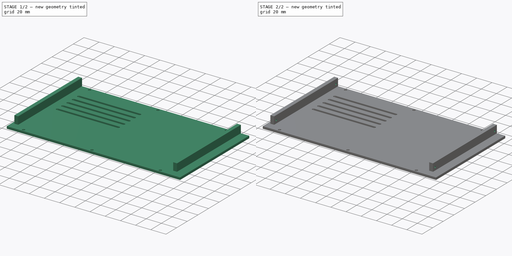
[diagram: build sequence overview — one tinted view per stage of 2, left to right]
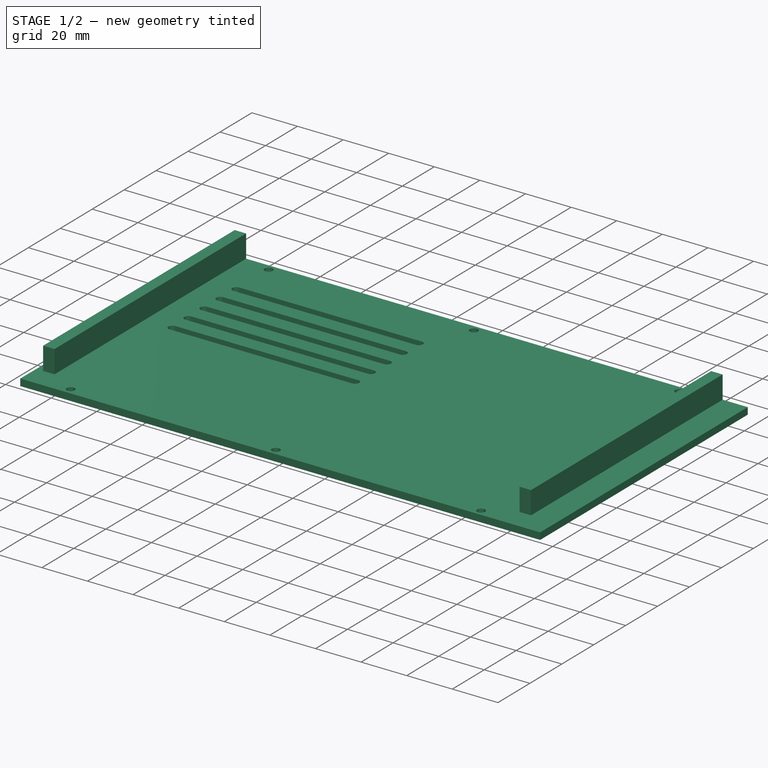
[diagram: stage 1 of 2 — iso view after this stage's code; geometry added in this stage tinted green]
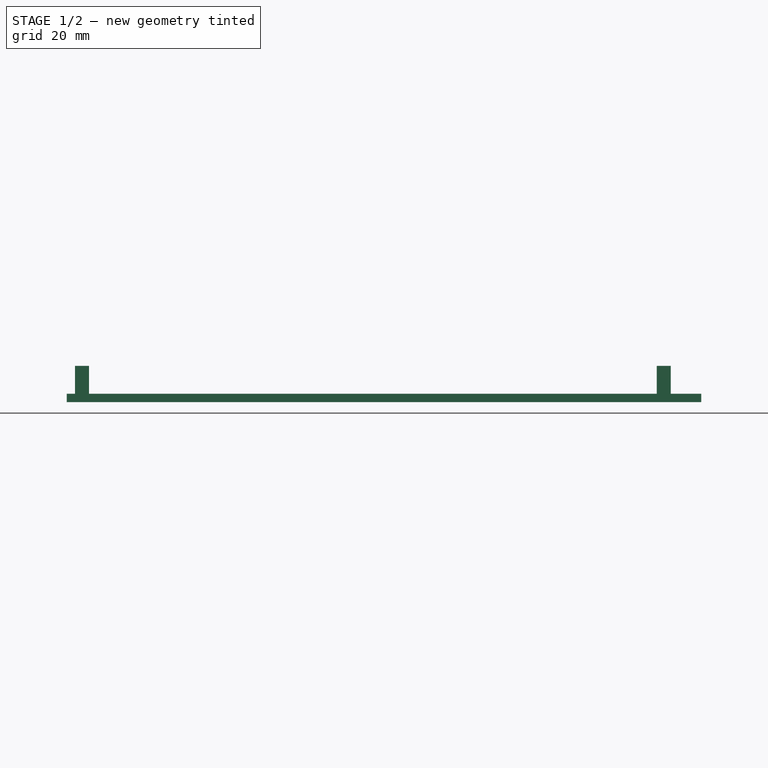
[diagram: stage 1 of 2 — front view after this stage's code; geometry added in this stage tinted green]
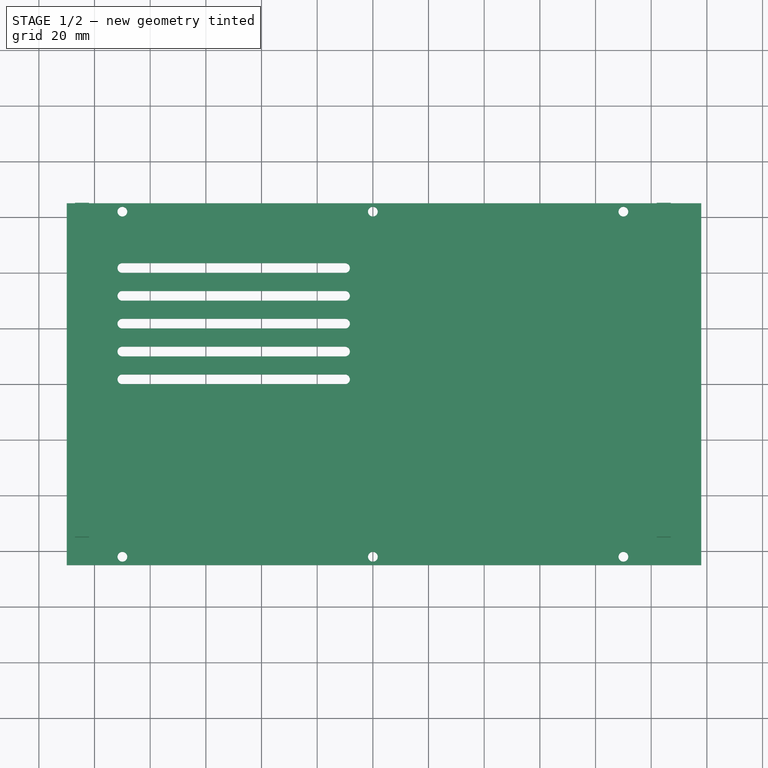
[diagram: stage 1 of 2 — top view after this stage's code; geometry added in this stage tinted green]
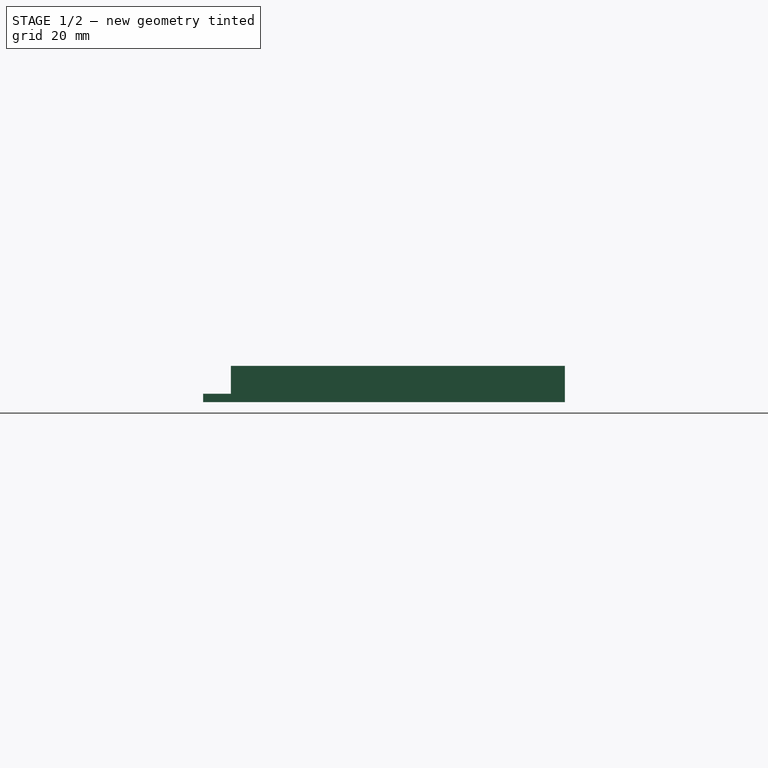
[diagram: stage 1 of 2 — right view after this stage's code; geometry added in this stage tinted green]
FCSTD DOCUMENT  (FreeCAD 0.19R24267 +99 (Git))
Label: T41 Side Right Panel V006
License: All rights reserved
LicenseURL: http://en.wikipedia.org/wiki/All_rights_reserved
objects: Sketcher::SketchObject×3, PartDesign::Pad×2, PartDesign::Pocket×1, PartDesign::Body×1
note: 10 computed .brp shape members not serialized (recipe doc carries the construction recipe); baked Part::Feature solids carry a one-line shape summary decoded from their .brp

FEATURE [Sketcher::SketchObject] Sketch
  FullyConstrained = true
  MapMode = 5
  Support = -> [XY_Plane]
  sketch-geometry (30):
    g0: LineSegment StartX=-110 StartY=65 StartZ=0 EndX=118 EndY=65 EndZ=0
    g1: LineSegment StartX=118 StartY=65 StartZ=0 EndX=118 EndY=-65 EndZ=0
    g2: LineSegment StartX=118 StartY=-65 StartZ=0 EndX=-110 EndY=-65 EndZ=0
    g3: LineSegment StartX=-110 StartY=-65 StartZ=0 EndX=-110 EndY=65 EndZ=0
    g4: Circle CenterX=-90 CenterY=62 CenterZ=0 NormalX=0 NormalY=0 NormalZ=1 AngleXU=0 Radius=1.75
    g5: Circle CenterX=0 CenterY=62 CenterZ=0 NormalX=0 NormalY=0 NormalZ=1 AngleXU=0 Radius=1.75
    g6: Circle CenterX=90 CenterY=62 CenterZ=0 NormalX=0 NormalY=0 NormalZ=1 AngleXU=0 Radius=1.75
    g7: Circle CenterX=-90 CenterY=-62 CenterZ=0 NormalX=0 NormalY=0 NormalZ=1 AngleXU=0 Radius=1.75
    g8: Circle CenterX=0 CenterY=-62 CenterZ=0 NormalX=0 NormalY=0 NormalZ=1 AngleXU=0 Radius=1.75
    g9: Circle CenterX=90 CenterY=-62 CenterZ=0 NormalX=0 NormalY=0 NormalZ=1 AngleXU=0 Radius=1.75
    g10: ArcOfCircle CenterX=-90 CenterY=41.75 CenterZ=0 NormalX=0 NormalY=0 NormalZ=1 AngleXU=0 Radius=1.75 StartAngle=1.5708 EndAngle=4.71239
    g11: ArcOfCircle CenterX=-10 CenterY=41.75 CenterZ=0 NormalX=0 NormalY=0 NormalZ=1 AngleXU=0 Radius=1.75 StartAngle=4.71239 EndAngle=7.85398
    g12: LineSegment StartX=-90 StartY=40 StartZ=0 EndX=-10 EndY=40 EndZ=0
    g13: LineSegment StartX=-90 StartY=43.5 StartZ=0 EndX=-10 EndY=43.5 EndZ=0
    g14: ArcOfCircle CenterX=-90 CenterY=31.75 CenterZ=0 NormalX=0 NormalY=0 NormalZ=1 AngleXU=0 Radius=1.75 StartAngle=1.5708 EndAngle=4.71239
    g15: ArcOfCircle CenterX=-10 CenterY=31.75 CenterZ=0 NormalX=0 NormalY=0 NormalZ=1 AngleXU=0 Radius=1.75 StartAngle=4.71239 EndAngle=7.85398
    g16: LineSegment StartX=-90 StartY=30 StartZ=0 EndX=-10 EndY=30 EndZ=0
    g17: LineSegment StartX=-90 StartY=33.5 StartZ=0 EndX=-10 EndY=33.5 EndZ=0
    g18: ArcOfCircle CenterX=-90 CenterY=21.75 CenterZ=0 NormalX=0 NormalY=0 NormalZ=1 AngleXU=0 Radius=1.75 StartAngle=1.5708 EndAngle=4.71239
    g19: ArcOfCircle CenterX=-10 CenterY=21.75 CenterZ=0 NormalX=0 NormalY=0 NormalZ=1 AngleXU=0 Radius=1.75 StartAngle=4.71239 EndAngle=7.85398
    g20: LineSegment StartX=-90 StartY=20 StartZ=0 EndX=-10 EndY=20 EndZ=0
    g21: LineSegment StartX=-90 StartY=23.5 StartZ=0 EndX=-10 EndY=23.5 EndZ=0
    g22: ArcOfCircle CenterX=-90 CenterY=11.75 CenterZ=0 NormalX=0 NormalY=0 NormalZ=1 AngleXU=0 Radius=1.75 StartAngle=1.5708 EndAngle=4.71239
    g23: ArcOfCircle CenterX=-10 CenterY=11.75 CenterZ=0 NormalX=0 NormalY=0 NormalZ=1 AngleXU=0 Radius=1.75 StartAngle=4.71239 EndAngle=7.85398
    g24: LineSegment StartX=-90 StartY=10 StartZ=0 EndX=-10 EndY=10 EndZ=0
    g25: LineSegment StartX=-90 StartY=13.5 StartZ=0 EndX=-10 EndY=13.5 EndZ=0
    g26: ArcOfCircle CenterX=-90 CenterY=1.75 CenterZ=0 NormalX=0 NormalY=0 NormalZ=1 AngleXU=0 Radius=1.75 StartAngle=1.5708 EndAngle=4.71239
    g27: ArcOfCircle CenterX=-10 CenterY=1.75 CenterZ=0 NormalX=0 NormalY=0 NormalZ=1 AngleXU=0 Radius=1.75 StartAngle=4.71239 EndAngle=7.85398
    g28: LineSegment StartX=-90 StartY=0 StartZ=0 EndX=-10 EndY=0 EndZ=0
    g29: LineSegment StartX=-90 StartY=3.5 StartZ=0 EndX=-10 EndY=3.5 EndZ=0
  constraints (80):
    c: Coincident(g0,g1)
    c: Coincident(g1,g2)
    c: Coincident(g2,g3)
    c: Coincident(g3,g0)
    c: Horizontal(g0)
    c: Vertical(g1)
    c: DistanceX(g0,g0) = 228
    c: DistanceY(g1,g1) = 130
    c: Symmetric(g2,g1,g-2)
    c: Symmetric(g2,g0,g-1)
    c: PointOnObject(g5,g-2)
    c: Equal(g4,g5)
    c: Equal(g4,g6)
    c: Diameter(g4) = 3.5
    c: Horizontal(g4,g5)
    c: Horizontal(g5,g6)
    c: DistanceY(g-1,g5) = 62
    c: Equal(g7,g8)
    c: Equal(g7,g9)
    c: Diameter(g7) = 3.5
    c: Horizontal(g7,g8)
    c: Horizontal(g8,g9)
    c: DistanceY(g8,g-1) = 62
    c: DistanceX(g2,g7) = 20
    c: DistanceX(g9,g1) = 28
    c: PointOnObject(g8,g-2)
    c: DistanceX(g6,g0) = 28
    c: DistanceX(g0,g4) = 20
    c: Tangent(g10,g13) = 1.5708
    c: Tangent(g10,g12) = -1.5708
    c: Tangent(g12,g11) = -1.5708
    c: Tangent(g13,g11) = 1.5708
    c: Horizontal(g12)
    c: Equal(g10,g11)
    c: DistanceX(g13,g13) = 80
    c: DistanceY(g11,g11) = 3.5
    c: Tangent(g14,g17) = 1.5708
    c: Tangent(g14,g16) = -1.5708
    c: Tangent(g16,g15) = -1.5708
    c: Tangent(g17,g15) = 1.5708
    c: Horizontal(g16)
    c: Equal(g14,g15)
    c: DistanceX(g17,g17) = 80
    c: DistanceY(g15,g15) = 3.5
    c: Tangent(g18,g21) = 1.5708
    c: Tangent(g18,g20) = -1.5708
    c: Tangent(g20,g19) = -1.5708
    c: Tangent(g21,g19) = 1.5708
    c: Horizontal(g20)
    c: Equal(g18,g19)
    c: DistanceX(g21,g21) = 80
    c: DistanceY(g19,g19) = 3.5
    c: Tangent(g22,g25) = 1.5708
    c: Tangent(g22,g24) = -1.5708
    c: Tangent(g24,g23) = -1.5708
    c: Tangent(g25,g23) = 1.5708
    c: Horizontal(g24)
    c: Equal(g22,g23)
    c: DistanceX(g25,g25) = 80
    c: DistanceY(g23,g23) = 3.5
    c: Tangent(g26,g29) = 1.5708
    c: Tangent(g26,g28) = -1.5708
    c: Tangent(g28,g27) = -1.5708
    c: Tangent(g29,g27) = 1.5708
    c: Horizontal(g28)
    c: Equal(g26,g27)
    c: DistanceX(g29,g29) = 80
    c: DistanceY(g27,g27) = 3.5
    c: DistanceY(g15,g11) = 10
    c: DistanceY(g19,g15) = 10
    c: DistanceY(g23,g19) = 10
    c: DistanceY(g27,g23) = 10
    c: Vertical(g11,g15)
    c: Vertical(g15,g19)
    c: Vertical(g19,g23)
    c: Vertical(g23,g27)
    c: DistanceX(g-1,g26) = -90
    c: Horizontal(g26,g-1)
    c: DistanceX(g2) = -110
    c: DistanceY(g2,g0) = 130
FEATURE [PartDesign::Pad] Pad
  Direction = (1,1,1)
  Length = 3
  Length2 = 100
  Profile = -> Sketch
  Type = 0
FEATURE [Sketcher::SketchObject] Sketch001
  FullyConstrained = true
  MapMode = 5
  Support = -> [XY_Plane]
  sketch-geometry (8):
    g0: LineSegment StartX=102 StartY=65 StartZ=0 EndX=107 EndY=65 EndZ=0
    g1: LineSegment StartX=107 StartY=65 StartZ=0 EndX=107 EndY=-55 EndZ=0
    g2: LineSegment StartX=107 StartY=-55 StartZ=0 EndX=102 EndY=-55 EndZ=0
    g3: LineSegment StartX=102 StartY=-55 StartZ=0 EndX=102 EndY=65 EndZ=0
    g4: LineSegment StartX=-107 StartY=65 StartZ=0 EndX=-102 EndY=65 EndZ=0
    g5: LineSegment StartX=-102 StartY=65 StartZ=0 EndX=-102 EndY=-55 EndZ=0
    g6: LineSegment StartX=-102 StartY=-55 StartZ=0 EndX=-107 EndY=-55 EndZ=0
    g7: LineSegment StartX=-107 StartY=-55 StartZ=0 EndX=-107 EndY=65 EndZ=0
  constraints (24):
    c: Coincident(g0,g1)
    c: Coincident(g1,g2)
    c: Coincident(g2,g3)
    c: Coincident(g3,g0)
    c: Horizontal(g0)
    c: Horizontal(g2)
    c: Vertical(g1)
    c: Vertical(g3)
    c: Coincident(g4,g5)
    c: Coincident(g5,g6)
    c: Coincident(g6,g7)
    c: Coincident(g7,g4)
    c: Horizontal(g4)
    c: Horizontal(g6)
    c: Vertical(g5)
    c: Vertical(g7)
    c: DistanceX(g0,g0) = 5
    c: DistanceX(g4,g4) = 5
    c: DistanceY(g1,g1) = 120
    c: DistanceY(g5,g5) = 120
    c: DistanceY(g-1,g0) = 65
    c: DistanceY(g-1,g4) = 65
    c: DistanceX(g-1,g0) = 107
    c: DistanceX(g4,g-1) = 107
FEATURE [PartDesign::Pad] Pad001  label="Flange"
  BaseFeature = -> Pad
  Direction = (1,1,1)
  Length = 13
  Length2 = 100
  Profile = -> Sketch001
  Type = 0
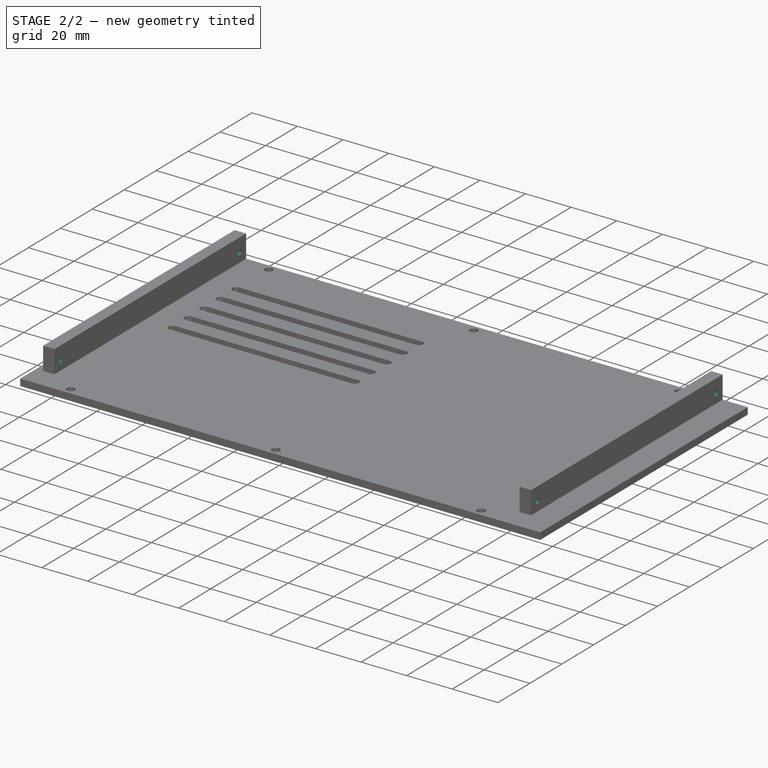
[diagram: stage 2 of 2 — iso view after this stage's code; geometry added in this stage tinted green]
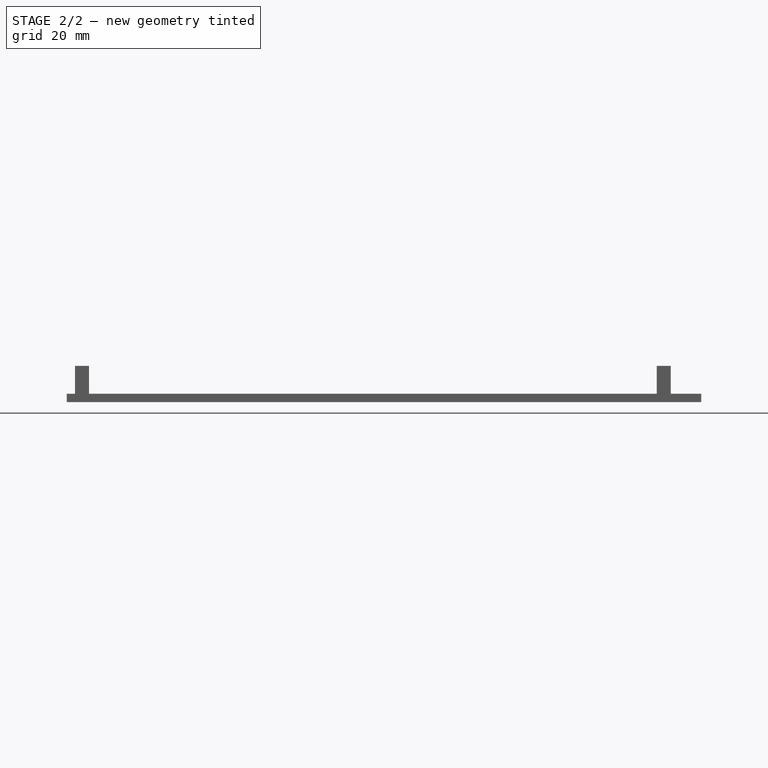
[diagram: stage 2 of 2 — front view after this stage's code; geometry added in this stage tinted green]
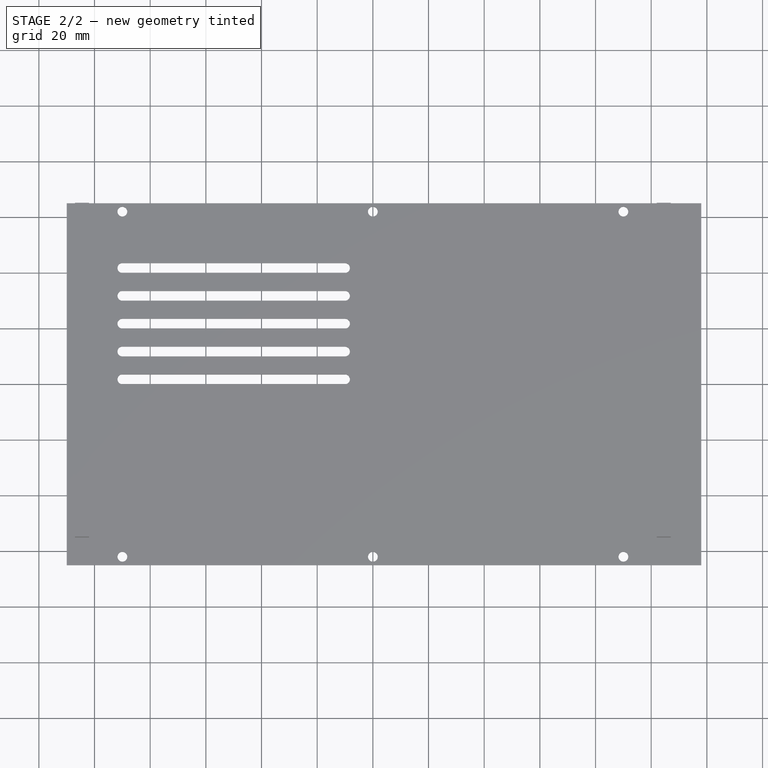
[diagram: stage 2 of 2 — top view after this stage's code; geometry added in this stage tinted green]
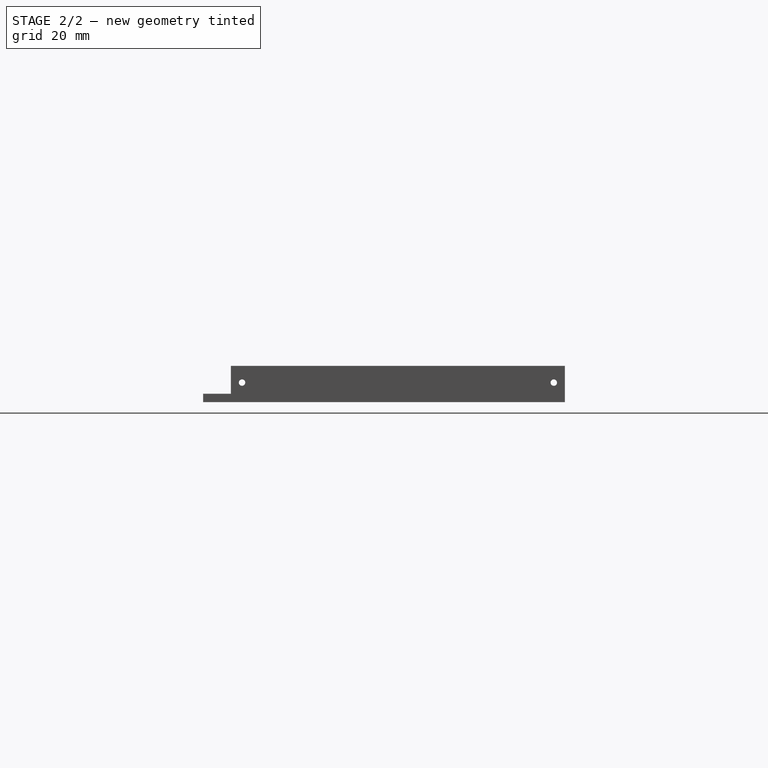
[diagram: stage 2 of 2 — right view after this stage's code; geometry added in this stage tinted green]
FEATURE [Sketcher::SketchObject] Sketch002
  FullyConstrained = true
  MapMode = 5
  Placement = pos=(0,0,0) rot=(0.57735,0.57735,0.57735;2.0944rad)
  Support = -> [YZ_Plane]
  sketch-geometry (2):
    g0: Circle CenterX=-51 CenterY=7 CenterZ=0 NormalX=0 NormalY=0 NormalZ=1 AngleXU=0 Radius=1.15
    g1: Circle CenterX=61 CenterY=7 CenterZ=0 NormalX=0 NormalY=0 NormalZ=1 AngleXU=0 Radius=1.15
  constraints (6):
    c: Equal(g0,g1)
    c: Diameter(g0) = 2.3
    c: DistanceX(g0,g-1) = 51
    c: DistanceX(g-1,g1) = 61
    c: Horizontal(g0,g1)
    c: DistanceY(g-1,g0) = 7
FEATURE [PartDesign::Pocket] Pocket
  BaseFeature = -> Pad001
  Length = 225
  Length2 = 100
  Midplane = true
  Profile = -> Sketch002
  Reversed = true
  Type = 0
FEATURE [PartDesign::Body] Body
  Group = -> [Sketch,Pad,Sketch001,Pad001,Sketch002,Pocket]
  Origin = -> Origin
  Tip = -> Pocket
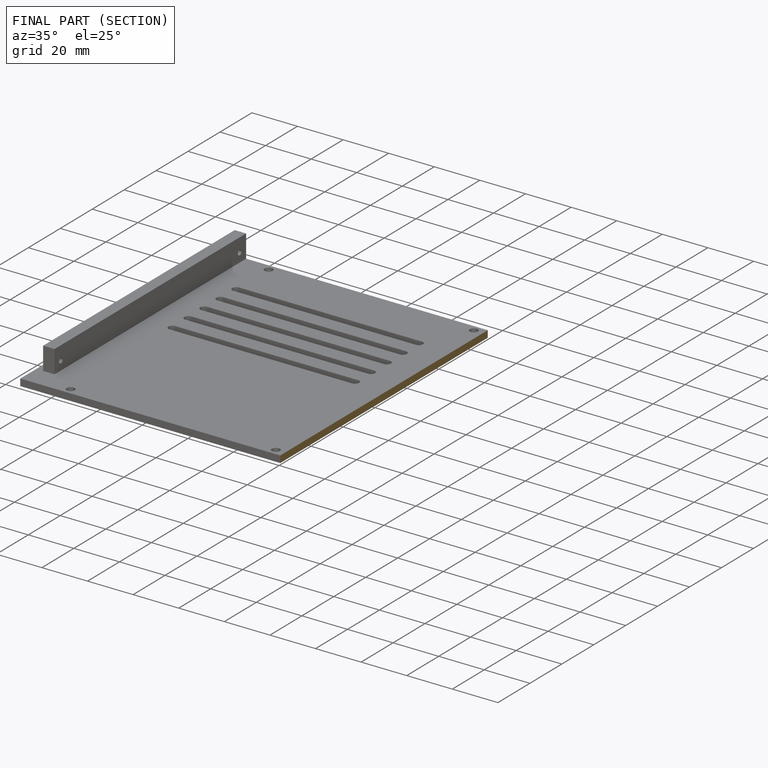
[diagram: finished part — half-section view (interior)]
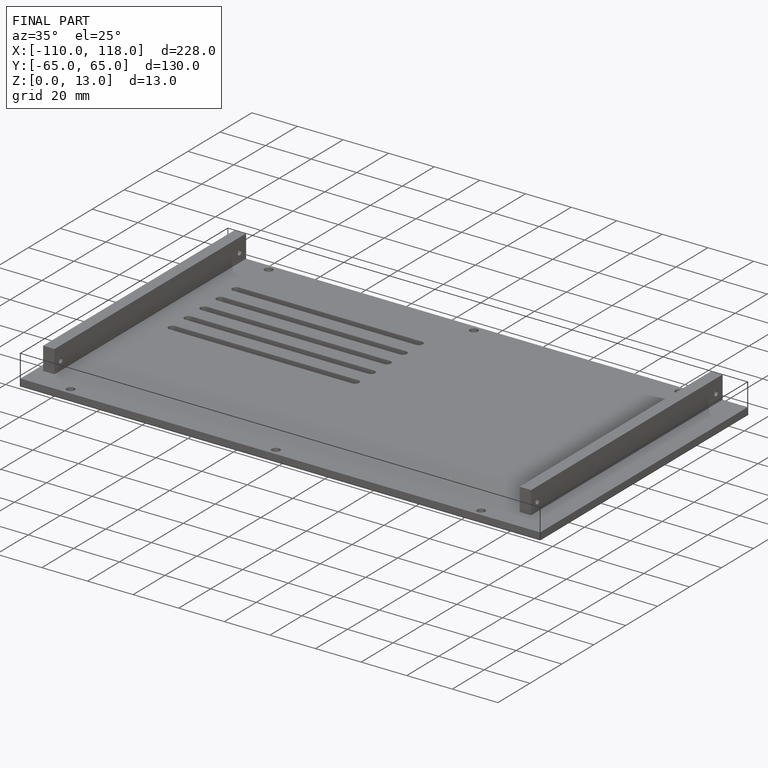
[diagram: finished part — iso view with bounding-box wireframe]
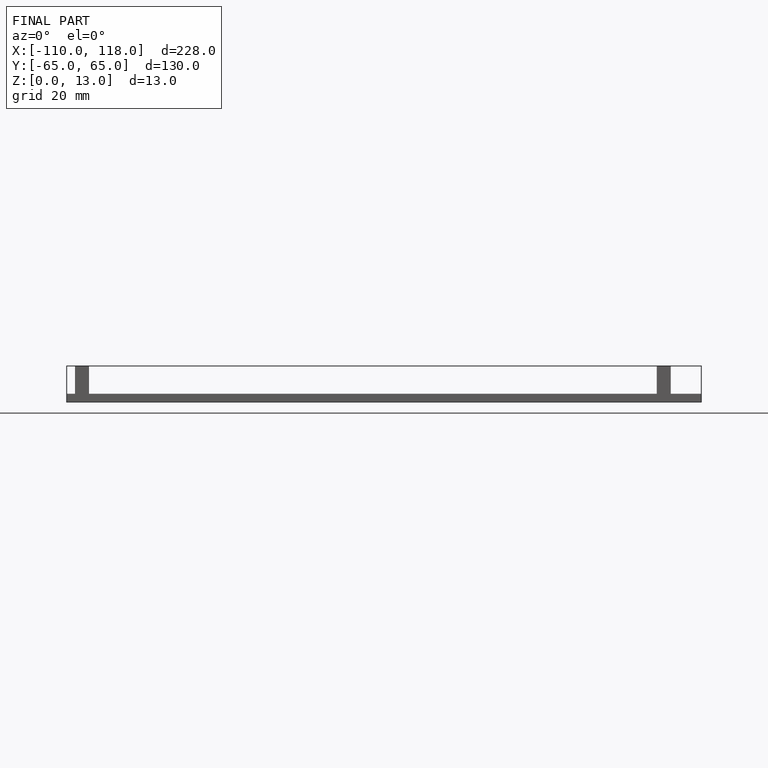
[diagram: finished part — front view with bounding-box wireframe]
